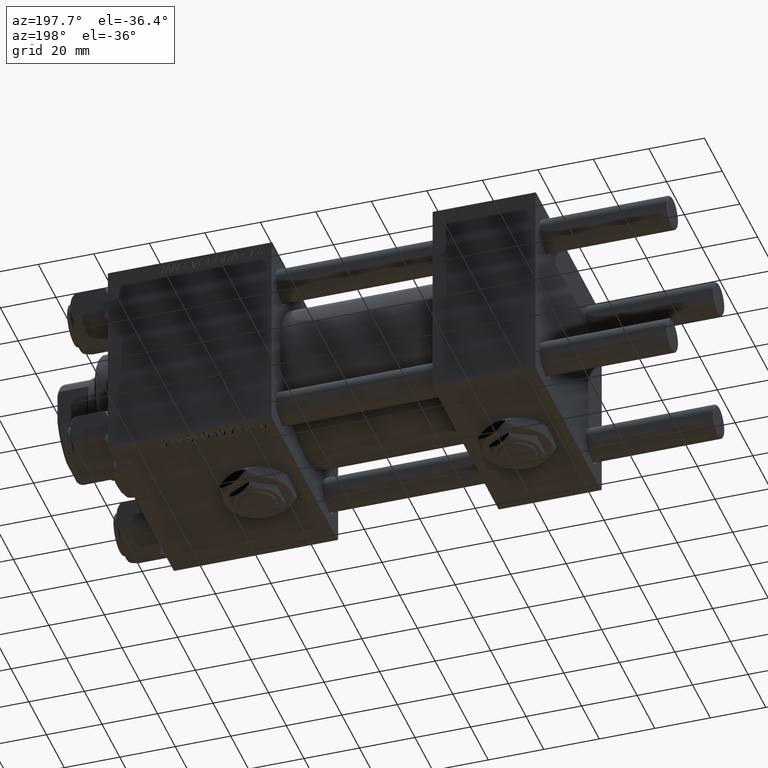
[diagram: clean part render]
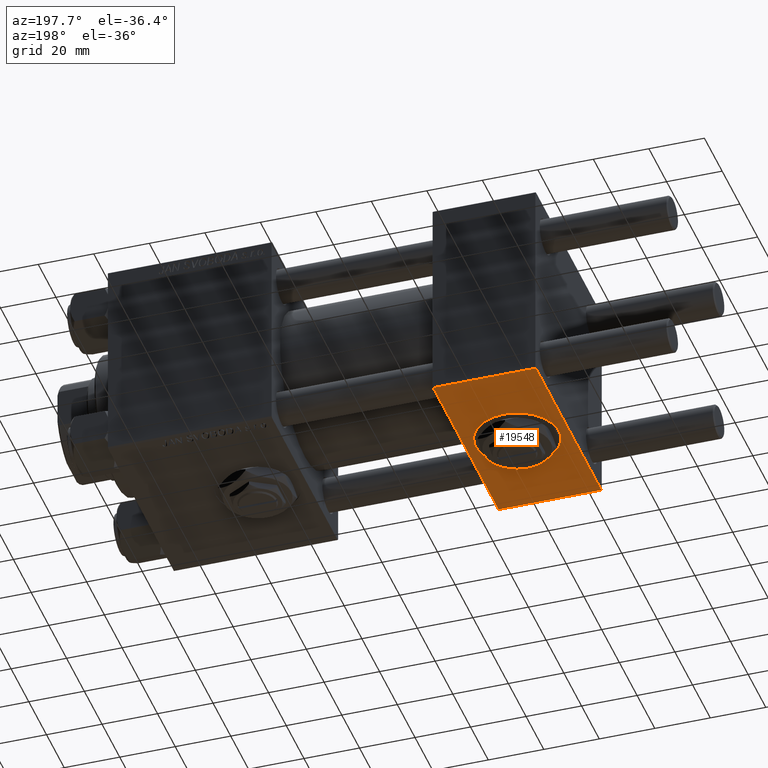
[diagram: same view with one face highlighted and labeled with its STEP entity id]
A machine part, auxiliary view. The second image highlights one B-rep face of the part: STEP entity #19548.
In plain terms, the highlighted planar face has unit normal (0, 0, -1).
Its self-contained STEP definition (entity closure, byte-faithful):
#109 = DIRECTION ( 'NONE',  ( 0.000000000000000000, -1.734723475976806848E-16, -1.000000000000000000 ) ) ;
#485 = VECTOR ( 'NONE', #50362, 1000.000000000000000 ) ;
#3131 = CARTESIAN_POINT ( 'NONE',  ( 0.000000000000000000, -37.00000000000002132, -37.50000000000000711 ) ) ;
#3579 = VERTEX_POINT ( 'NONE', #19271 ) ;
#4721 = DIRECTION ( 'NONE',  ( 0.000000000000000000, 9.251858538542972814E-17, -1.000000000000000000 ) ) ;
#5291 = DIRECTION ( 'NONE',  ( 0.000000000000000000, -1.000000000000000000, -9.251858538542972814E-17 ) ) ;
#6149 = ORIENTED_EDGE ( 'NONE', *, *, #12413, .T. ) ;
#6348 = LINE ( 'NONE', #34367, #13940 ) ;
#6775 = CARTESIAN_POINT ( 'NONE',  ( 37.00000000000000000, -37.00000000000002132, -37.50000000000000711 ) ) ;
#7893 = FACE_BOUND ( 'NONE', #49140, .T. ) ;
#10066 = AXIS2_PLACEMENT_3D ( 'NONE', #28364, #109, #39662 ) ;
#12078 = PLANE ( 'NONE',  #39078 ) ;
#12413 = EDGE_CURVE ( 'NONE', #27398, #49618, #14754, .T. ) ;
#13940 = VECTOR ( 'NONE', #5291, 1000.000000000000000 ) ;
#14754 = LINE ( 'NONE', #17650, #485 ) ;
#15054 = CARTESIAN_POINT ( 'NONE',  ( 0.000000000000000000, 36.99999999999997868, -37.50000000000000000 ) ) ;
#15542 = VERTEX_POINT ( 'NONE', #47780 ) ;
#15964 = ORIENTED_EDGE ( 'NONE', *, *, #34259, .T. ) ;
#16002 = CARTESIAN_POINT ( 'NONE',  ( 37.00000000000000000, 37.49999999999999289, -37.50000000000000000 ) ) ;
#17434 = DIRECTION ( 'NONE',  ( 1.000000000000000000, 0.000000000000000000, 0.000000000000000000 ) ) ;
#17650 = CARTESIAN_POINT ( 'NONE',  ( 37.00000000000000000, 37.49999999999999289, -37.50000000000000000 ) ) ;
#18443 = CIRCLE ( 'NONE', #10066, 15.00000000000000000 ) ;
#19271 = CARTESIAN_POINT ( 'NONE',  ( 0.000000000000000000, -37.00000000000002132, -37.50000000000000711 ) ) ;
#19548 = ADVANCED_FACE ( 'NONE', ( #7893, #32233 ), #12078, .T. ) ;
#20143 = CIRCLE ( 'NONE', #35187, 15.00000000000000000 ) ;
#23415 = ORIENTED_EDGE ( 'NONE', *, *, #27576, .F. ) ;
#25359 = CARTESIAN_POINT ( 'NONE',  ( 18.50000000000000000, 1.999870792976790439E-15, -37.50000000000000711 ) ) ;
#26600 = VERTEX_POINT ( 'NONE', #39150 ) ;
#26626 = EDGE_CURVE ( 'NONE', #26600, #15542, #18443, .T. ) ;
#27344 = EDGE_CURVE ( 'NONE', #49618, #3579, #43197, .T. ) ;
#27398 = VERTEX_POINT ( 'NONE', #27468 ) ;
#27468 = CARTESIAN_POINT ( 'NONE',  ( 37.00000000000000000, 36.99999999999997868, -37.50000000000000000 ) ) ;
#27576 = EDGE_CURVE ( 'NONE', #15542, #26600, #20143, .T. ) ;
#28364 = CARTESIAN_POINT ( 'NONE',  ( 18.50000000000000000, 1.999870792976790439E-15, -37.50000000000000711 ) ) ;
#28685 = CARTESIAN_POINT ( 'NONE',  ( 37.00000000000000000, 36.99999999999997868, -37.50000000000000000 ) ) ;
#29414 = ORIENTED_EDGE ( 'NONE', *, *, #38801, .F. ) ;
#31984 = DIRECTION ( 'NONE',  ( 0.000000000000000000, 1.000000000000000000, 9.251858538542972814E-17 ) ) ;
#32233 = FACE_OUTER_BOUND ( 'NONE', #44438, .T. ) ;
#34259 = EDGE_CURVE ( 'NONE', #41734, #27398, #48585, .T. ) ;
#34367 = CARTESIAN_POINT ( 'NONE',  ( 0.000000000000000000, 37.49999999999999289, -37.50000000000000000 ) ) ;
#35187 = AXIS2_PLACEMENT_3D ( 'NONE', #25359, #49705, #45517 ) ;
#36962 = VECTOR ( 'NONE', #17434, 1000.000000000000000 ) ;
#38154 = ORIENTED_EDGE ( 'NONE', *, *, #26626, .F. ) ;
#38801 = EDGE_CURVE ( 'NONE', #41734, #3579, #6348, .T. ) ;
#39078 = AXIS2_PLACEMENT_3D ( 'NONE', #16002, #4721, #31984 ) ;
#39150 = CARTESIAN_POINT ( 'NONE',  ( 18.50000000000000355, -14.99999999999999822, -37.50000000000000711 ) ) ;
#39662 = DIRECTION ( 'NONE',  ( 0.000000000000000000, 1.000000000000000000, 0.000000000000000000 ) ) ;
#41435 = ORIENTED_EDGE ( 'NONE', *, *, #27344, .T. ) ;
#41734 = VERTEX_POINT ( 'NONE', #15054 ) ;
#43197 = LINE ( 'NONE', #3131, #51046 ) ;
#44438 = EDGE_LOOP ( 'NONE', ( #29414, #15964, #6149, #41435 ) ) ;
#45517 = DIRECTION ( 'NONE',  ( 0.000000000000000000, 1.000000000000000000, 0.000000000000000000 ) ) ;
#47637 = DIRECTION ( 'NONE',  ( -1.000000000000000000, 0.000000000000000000, 0.000000000000000000 ) ) ;
#47780 = CARTESIAN_POINT ( 'NONE',  ( 18.50000000000000000, 15.00000000000000178, -37.50000000000000711 ) ) ;
#48585 = LINE ( 'NONE', #28685, #36962 ) ;
#49140 = EDGE_LOOP ( 'NONE', ( #23415, #38154 ) ) ;
#49618 = VERTEX_POINT ( 'NONE', #6775 ) ;
#49705 = DIRECTION ( 'NONE',  ( 0.000000000000000000, -1.734723475976806848E-16, -1.000000000000000000 ) ) ;
#50362 = DIRECTION ( 'NONE',  ( 0.000000000000000000, -1.000000000000000000, -9.251858538542972814E-17 ) ) ;
#51046 = VECTOR ( 'NONE', #47637, 1000.000000000000000 ) ;